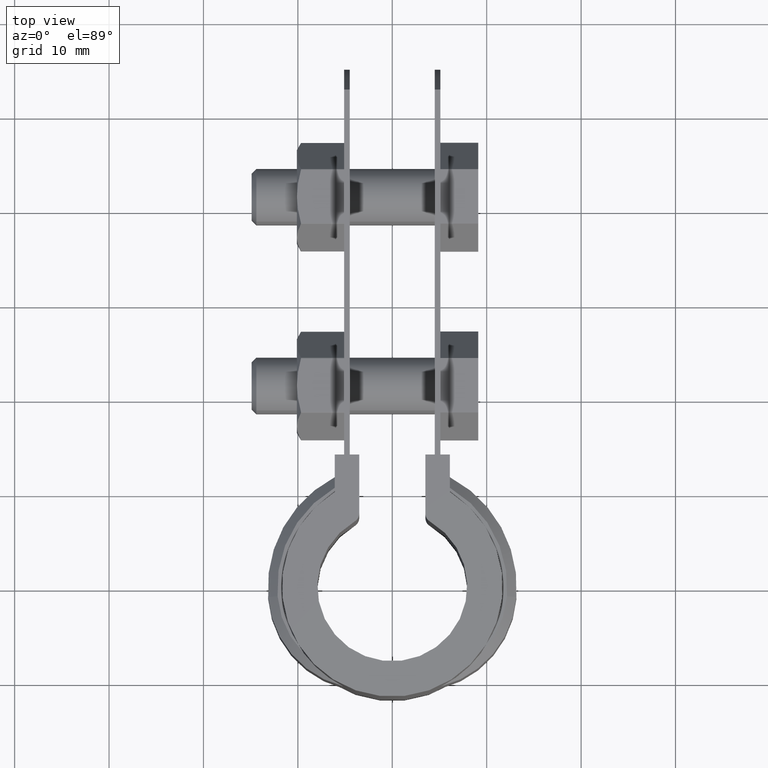
[diagram: clean part render]
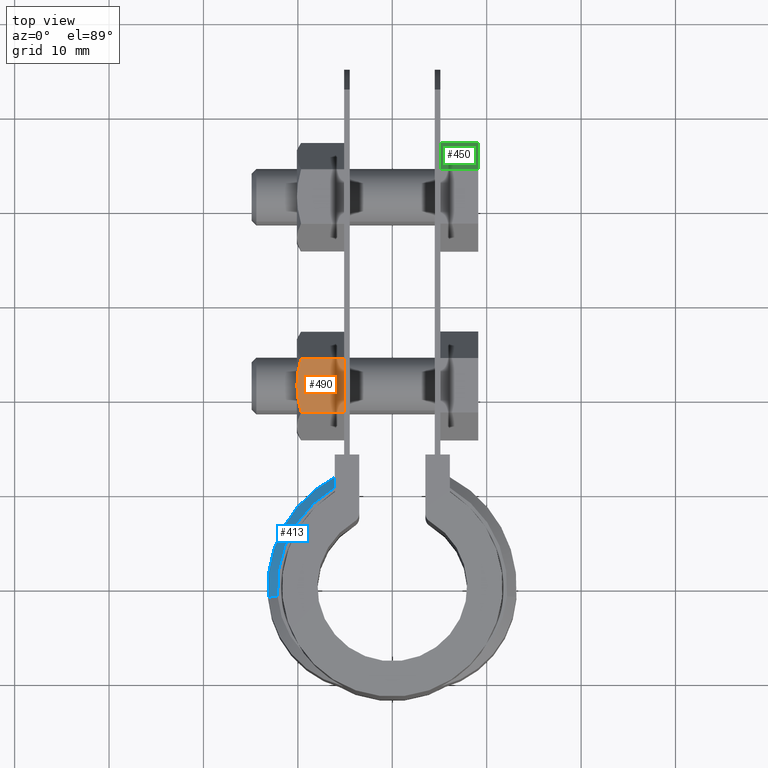
[diagram: same view with three faces highlighted in distinct colors, each labeled with its STEP entity id]
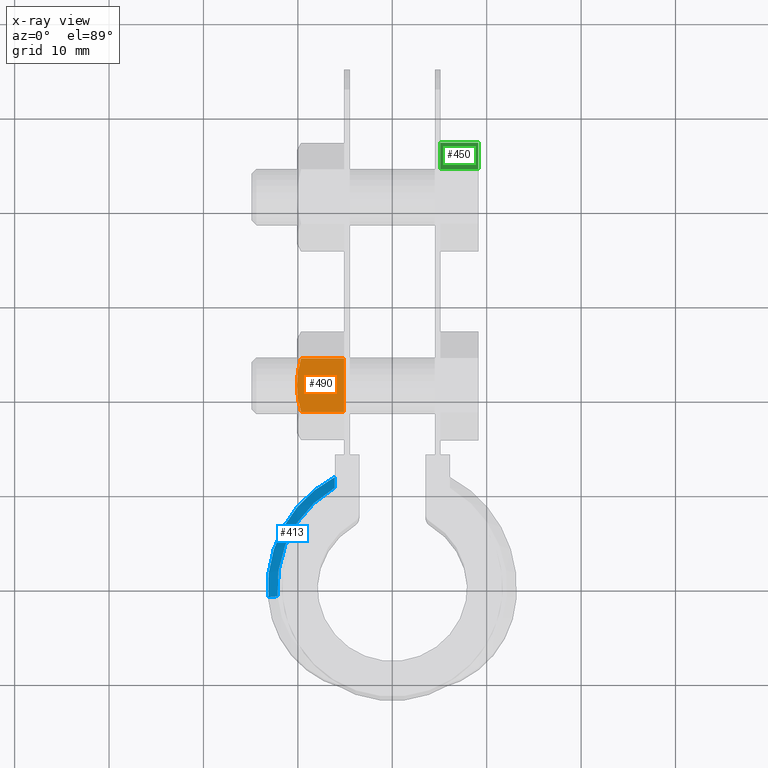
[diagram: x-ray of the same camera — body ghosted, the three highlighted faces saturated]
A machine part, top view with three faces highlighted in distinct colors.
The next image is the same camera in x-ray (body ghosted, the three faces saturated) — at least one of them is partly hidden behind the body in this view.
Their STEP definitions:

[orange] entity #490 — the highlighted planar face has unit normal (-0, -0, -1).
#490 = ADVANCED_FACE( '', ( #883 ), #884, .F. );
#883 = FACE_OUTER_BOUND( '', #1869, .T. );
#884 = PLANE( '', #1870 );
#1869 = EDGE_LOOP( '', ( #4273, #4274, #4275, #4276, #4277 ) );
#1870 = AXIS2_PLACEMENT_3D( '', #4278, #4279, #4280 );
#4273 = ORIENTED_EDGE( '', *, *, #4859, .F. );
#4274 = ORIENTED_EDGE( '', *, *, #4864, .F. );
#4275 = ORIENTED_EDGE( '', *, *, #4858, .F. );
#4276 = ORIENTED_EDGE( '', *, *, #4855, .F. );
#4277 = ORIENTED_EDGE( '', *, *, #4865, .F. );
#4278 = CARTESIAN_POINT( '', ( -5.10000000000000, 24.3422274473513, -7.50000000000021 ) );
#4279 = DIRECTION( '', ( -3.34095588761525E-052, -5.55111512313044E-017, -1.00000000000000 ) );
#4280 = DIRECTION( '', ( -3.34095588761525E-052, 1.00000000000000, -5.55111512313044E-017 ) );
#4855 = EDGE_CURVE( '', #5685, #5667, #5687, .T. );
#4858 = EDGE_CURVE( '', #5667, #5688, #5692, .F. );
#4859 = EDGE_CURVE( '', #5645, #5693, #5694, .T. );
#4864 = EDGE_CURVE( '', #5688, #5645, #5700, .T. );
#4865 = EDGE_CURVE( '', #5693, #5685, #5701, .T. );
#5645 = VERTEX_POINT( '', #8095 );
#5667 = VERTEX_POINT( '', #8130 );
#5685 = VERTEX_POINT( '', #8152 );
#5687 = LINE( '', #8154, #8155 );
#5688 = VERTEX_POINT( '', #8156 );
#5692 = LINE( '', #8161, #8162 );
#5693 = VERTEX_POINT( '', #8163 );
#5694 = B_SPLINE_CURVE_WITH_KNOTS( '', 3, ( #8164, #8165, #8166, #8167, #8168, #8169, #8170, #8171 ), .UNSPECIFIED., .F., .F., ( 4, 2, 2, 4 ), ( 0.00287277010488779, 0.00358771851305246, 0.00430266692121712, 0.00573256373754645 ), .UNSPECIFIED. );
#5700 = B_SPLINE_CURVE_WITH_KNOTS( '', 3, ( #8186, #8187, #8188, #8189 ), .UNSPECIFIED., .F., .F., ( 4, 4 ), ( 7.22330826798410E-007, 0.00287277010488779 ), .UNSPECIFIED. );
#5701 = LINE( '', #8190, #8191 );
#8095 = CARTESIAN_POINT( '', ( -10.1000000000000, 21.4554761014033, -7.50000000000020 ) );
#8130 = CARTESIAN_POINT( '', ( -5.10000000000000, 18.6160219285033, -7.50000000000020 ) );
#8152 = CARTESIAN_POINT( '', ( -5.10000000000000, 24.2949302743034, -7.50000000000021 ) );
#8154 = CARTESIAN_POINT( '', ( -5.10000000000000, 24.3304761014032, -7.50000000000021 ) );
#8155 = VECTOR( '', #8849, 999.999999999988 );
#8156 = CARTESIAN_POINT( '', ( -9.66698729810777, 18.6160219285033, -7.50000000000020 ) );
#8161 = CARTESIAN_POINT( '', ( -5.10000000000000, 18.6160219285033, -7.50000000000020 ) );
#8162 = VECTOR( '', #8854, 1000.00000000002 );
#8163 = CARTESIAN_POINT( '', ( -9.66698729810777, 24.2949302743034, -7.50000000000021 ) );
#8164 = CARTESIAN_POINT( '', ( -10.1000000000000, 21.4554761014033, -7.50000000000021 ) );
#8165 = CARTESIAN_POINT( '', ( -10.1000000000000, 21.6960990600944, -7.50000000000021 ) );
#8166 = CARTESIAN_POINT( '', ( -10.0898108720832, 21.9381123716027, -7.50000000000021 ) );
#8167 = CARTESIAN_POINT( '', ( -10.0502996398894, 22.4169288085132, -7.50000000000021 ) );
#8168 = CARTESIAN_POINT( '', ( -10.0210226875360, 22.6547619844306, -7.50000000000021 ) );
#8169 = CARTESIAN_POINT( '', ( -9.90799451667576, 23.3640933114173, -7.50000000000021 ) );
#8170 = CARTESIAN_POINT( '', ( -9.79913188755707, 23.8314374720348, -7.50000000000021 ) );
#8171 = CARTESIAN_POINT( '', ( -9.66698729810783, 24.2949302743034, -7.50000000000021 ) );
#8186 = CARTESIAN_POINT( '', ( -9.66698729810783, 18.6160219285033, -7.50000000000021 ) );
#8187 = CARTESIAN_POINT( '', ( -9.93203573458750, 19.5456706040403, -7.50000000000021 ) );
#8188 = CARTESIAN_POINT( '', ( -10.1000000000000, 20.4888600141381, -7.50000000000021 ) );
#8189 = CARTESIAN_POINT( '', ( -10.1000000000000, 21.4554761014033, -7.50000000000021 ) );
#8190 = CARTESIAN_POINT( '', ( -5.10000000000000, 24.2949302743034, -7.50000000000021 ) );
#8191 = VECTOR( '', #8859, 1000.00000000002 );
#8849 = DIRECTION( '', ( 3.34095588761526E-052, -1.00000000000000, 1.83186799063153E-015 ) );
#8854 = DIRECTION( '', ( 1.00000000000000, 3.34095588761525E-052, -3.34095588761525E-052 ) );
#8859 = DIRECTION( '', ( 1.00000000000000, 3.34095588761525E-052, -3.34095588761525E-052 ) );

[blue] entity #413 — the highlighted conical surface has half-angle 45 deg.
#413 = ADVANCED_FACE( '', ( #715 ), #716, .T. );
#715 = FACE_OUTER_BOUND( '', #1701, .T. );
#716 = CONICAL_SURFACE( '', #1702, 12.1850000000000, 0.785398163397449 );
#1701 = EDGE_LOOP( '', ( #3702, #3703, #3704, #3705 ) );
#1702 = AXIS2_PLACEMENT_3D( '', #3706, #3707, #3708 );
#3702 = ORIENTED_EDGE( '', *, *, #4539, .F. );
#3703 = ORIENTED_EDGE( '', *, *, #4715, .F. );
#3704 = ORIENTED_EDGE( '', *, *, #4712, .F. );
#3705 = ORIENTED_EDGE( '', *, *, #4716, .F. );
#3706 = CARTESIAN_POINT( '', ( -8.67361737988404E-016, 1.73472347597681E-015, -5.00000000000000 ) );
#3707 = DIRECTION( '', ( 0.000000000000000, 0.000000000000000, -1.00000000000000 ) );
#3708 = DIRECTION( '', ( -1.00000000000000, 0.000000000000000, 0.000000000000000 ) );
#4539 = EDGE_CURVE( '', #5159, #5161, #5162, .T. );
#4712 = EDGE_CURVE( '', #5449, #5450, #5451, .T. );
#4715 = EDGE_CURVE( '', #5450, #5159, #5454, .F. );
#4716 = EDGE_CURVE( '', #5161, #5449, #5455, .T. );
#5159 = VERTEX_POINT( '', #6723 );
#5161 = VERTEX_POINT( '', #6726 );
#5162 = B_SPLINE_CURVE_WITH_KNOTS( '', 3, ( #6727, #6728, #6729, #6730 ), .UNSPECIFIED., .F., .F., ( 4, 4 ), ( 0.000000000000000, 0.00151710371603435 ), .UNSPECIFIED. );
#5449 = VERTEX_POINT( '', #7758 );
#5450 = VERTEX_POINT( '', #7759 );
#5451 = LINE( '', #7760, #7761 );
#5454 = CIRCLE( '', #7764, 13.1850000000000 );
#5455 = CIRCLE( '', #7765, 12.1850000000000 );
#6723 = CARTESIAN_POINT( '', ( -6.10000000000003, 11.6890643338122, -6.00000000000000 ) );
#6726 = CARTESIAN_POINT( '', ( -6.10000000000002, 10.5481858629814, -5.00000000000000 ) );
#6727 = CARTESIAN_POINT( '', ( -6.10000000000003, 11.6890643338122, -6.00000000000000 ) );
#6728 = CARTESIAN_POINT( '', ( -6.10000000000003, 11.3106579793807, -5.66452664230010 ) );
#6729 = CARTESIAN_POINT( '', ( -6.10000000000002, 10.9305273533123, -5.33098146107014 ) );
#6730 = CARTESIAN_POINT( '', ( -6.10000000000002, 10.5481858629814, -5.00000000000000 ) );
#7758 = CARTESIAN_POINT( '', ( -12.1484753701747, -0.942746615087043, -5.00000000000000 ) );
#7759 = CARTESIAN_POINT( '', ( -13.1454778625978, -1.02011605415861, -6.00000000000000 ) );
#7760 = CARTESIAN_POINT( '', ( -12.1484753701747, -0.942746615087043, -5.00000000000000 ) );
#7761 = VECTOR( '', #8620, 1000.00000000000 );
#7764 = AXIS2_PLACEMENT_3D( '', #8627, #8628, #8629 );
#7765 = AXIS2_PLACEMENT_3D( '', #8630, #8631, #8632 );
#8620 = DIRECTION( '', ( -0.704987223252219, -0.0547084550241043, -0.707106781186548 ) );
#8627 = CARTESIAN_POINT( '', ( -8.67361737988404E-016, 1.73472347597681E-015, -6.00000000000000 ) );
#8628 = DIRECTION( '', ( 0.000000000000000, 0.000000000000000, 1.00000000000000 ) );
#8629 = DIRECTION( '', ( 1.00000000000000, 0.000000000000000, 0.000000000000000 ) );
#8630 = CARTESIAN_POINT( '', ( -8.67361737988404E-016, 1.73472347597681E-015, -5.00000000000000 ) );
#8631 = DIRECTION( '', ( 0.000000000000000, 0.000000000000000, 1.00000000000000 ) );
#8632 = DIRECTION( '', ( 1.00000000000000, 0.000000000000000, 0.000000000000000 ) );

[green] entity #450 — the highlighted planar face has unit normal (0, -0.866, -0.5).
#450 = ADVANCED_FACE( '', ( #794 ), #795, .F. );
#794 = FACE_OUTER_BOUND( '', #1780, .T. );
#795 = PLANE( '', #1781 );
#1780 = EDGE_LOOP( '', ( #3972, #3973, #3974, #3975 ) );
#1781 = AXIS2_PLACEMENT_3D( '', #3976, #3977, #3978 );
#3972 = ORIENTED_EDGE( '', *, *, #4760, .T. );
#3973 = ORIENTED_EDGE( '', *, *, #4765, .F. );
#3974 = ORIENTED_EDGE( '', *, *, #4766, .F. );
#3975 = ORIENTED_EDGE( '', *, *, #4762, .T. );
#3976 = CARTESIAN_POINT( '', ( 9.10000000000085, 47.2289787933004, -12.4999999999995 ) );
#3977 = DIRECTION( '', ( 3.43252930181369E-085, -0.866025403784393, -0.500000000000080 ) );
#3978 = DIRECTION( '', ( -1.54312861059680E-086, 0.500000000000080, -0.866025403784393 ) );
#4760 = EDGE_CURVE( '', #5515, #5523, #5525, .T. );
#4762 = EDGE_CURVE( '', #5528, #5515, #5529, .T. );
#4765 = EDGE_CURVE( '', #5533, #5523, #5534, .T. );
#4766 = EDGE_CURVE( '', #5528, #5533, #5535, .T. );
#5515 = VERTEX_POINT( '', #7857 );
#5523 = VERTEX_POINT( '', #7869 );
#5525 = LINE( '', #7872, #7873 );
#5528 = VERTEX_POINT( '', #7876 );
#5529 = LINE( '', #7877, #7878 );
#5533 = VERTEX_POINT( '', #7884 );
#5534 = LINE( '', #7885, #7886 );
#5535 = LINE( '', #7887, #7888 );
#7857 = CARTESIAN_POINT( '', ( 5.10000000000000, 47.2289787933004, -12.4999999999995 ) );
#7869 = CARTESIAN_POINT( '', ( 5.10000000000000, 44.3422274473523, -7.49999999999852 ) );
#7872 = CARTESIAN_POINT( '', ( 5.10000000000000, 47.2289787933004, -12.4999999999995 ) );
#7873 = VECTOR( '', #8688, 999.999999999940 );
#7876 = CARTESIAN_POINT( '', ( 9.10000000000085, 47.2289787933004, -12.4999999999995 ) );
#7877 = CARTESIAN_POINT( '', ( 9.10000000000085, 47.2289787933004, -12.4999999999995 ) );
#7878 = VECTOR( '', #8692, 1000.00000000001 );
#7884 = CARTESIAN_POINT( '', ( 9.10000000000085, 44.3422274473523, -7.49999999999852 ) );
#7885 = CARTESIAN_POINT( '', ( 9.10000000000085, 44.3422274473523, -7.49999999999852 ) );
#7886 = VECTOR( '', #8695, 1000.00000000001 );
#7887 = CARTESIAN_POINT( '', ( 9.10000000000085, 47.2289787933004, -12.4999999999995 ) );
#7888 = VECTOR( '', #8696, 999.999999999940 );
#8688 = DIRECTION( '', ( 1.54312861059050E-086, -0.499999999999921, 0.866025403784484 ) );
#8692 = DIRECTION( '', ( -1.00000000000000, -3.04981400513481E-085, -1.58262579309878E-085 ) );
#8695 = DIRECTION( '', ( -1.00000000000000, -3.04981400513481E-085, -1.58262579309878E-085 ) );
#8696 = DIRECTION( '', ( 1.54312861059050E-086, -0.499999999999921, 0.866025403784484 ) );